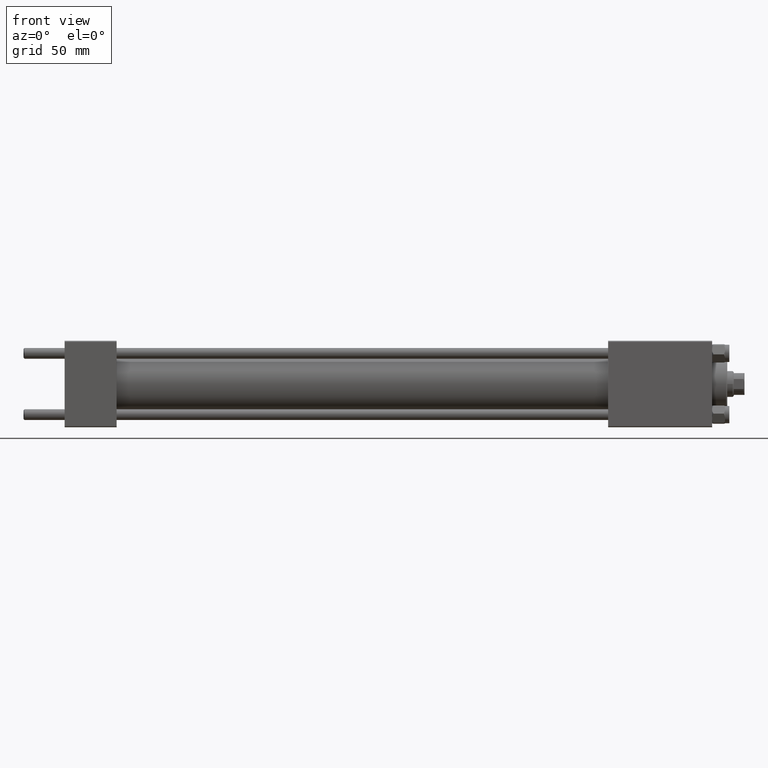
[diagram: clean part render]
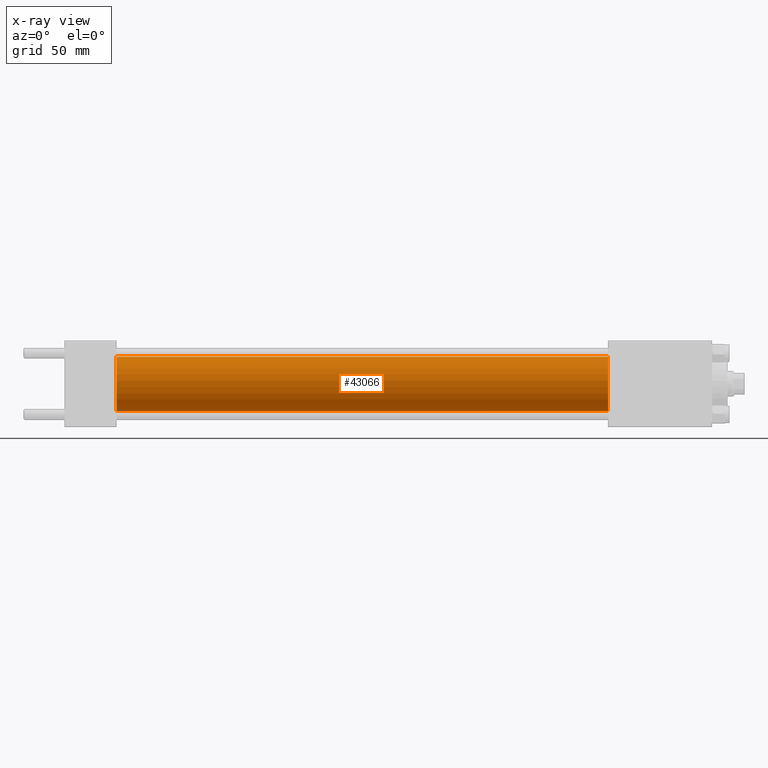
[diagram: x-ray — body ghosted, one internal face saturated and labeled with its STEP entity id]
A machine part, front view, then the same camera in x-ray: the body is ghosted and one INTERNAL B-rep face — a face not visible from any outside direction — is saturated and labeled: STEP entity #43066.
In plain terms, the highlighted cylindrical surface (edge-blend (fillet) strip) has radius 12.5 mm, axis along (-1, -0, -0).
Its self-contained STEP definition (entity closure, byte-faithful):
#246 = ORIENTED_EDGE ( 'NONE', *, *, #7033, .T. ) ;
#934 = CARTESIAN_POINT ( 'NONE',  ( 24.00000000000000000, 1.530808498934190732E-15, -12.49999999999999645 ) ) ;
#1186 = ORIENTED_EDGE ( 'NONE', *, *, #32808, .F. ) ;
#2860 = VECTOR ( 'NONE', #9244, 1000.000000000000000 ) ;
#4675 = AXIS2_PLACEMENT_3D ( 'NONE', #39520, #31191, #31433 ) ;
#5018 = ORIENTED_EDGE ( 'NONE', *, *, #10359, .F. ) ;
#5993 = DIRECTION ( 'NONE',  ( 1.000000000000000000, 0.000000000000000000, 0.000000000000000000 ) ) ;
#7033 = EDGE_CURVE ( 'NONE', #48752, #48504, #8092, .T. ) ;
#8092 = CIRCLE ( 'NONE', #25065, 12.49999999999999645 ) ;
#8988 = CIRCLE ( 'NONE', #26806, 12.49999999999999645 ) ;
#9244 = DIRECTION ( 'NONE',  ( -1.000000000000000000, -0.000000000000000000, -0.000000000000000000 ) ) ;
#9985 = VERTEX_POINT ( 'NONE', #43732 ) ;
#10359 = EDGE_CURVE ( 'NONE', #9985, #19426, #8988, .T. ) ;
#14328 = DIRECTION ( 'NONE',  ( 0.000000000000000000, 0.000000000000000000, -1.000000000000000000 ) ) ;
#16250 = DIRECTION ( 'NONE',  ( -1.000000000000000000, -0.000000000000000000, -0.000000000000000000 ) ) ;
#16751 = CARTESIAN_POINT ( 'NONE',  ( 251.0000000000000000, 1.530808498934190732E-15, -12.49999999999999645 ) ) ;
#19426 = VERTEX_POINT ( 'NONE', #934 ) ;
#24115 = CYLINDRICAL_SURFACE ( 'NONE', #4675, 12.49999999999999645 ) ;
#25065 = AXIS2_PLACEMENT_3D ( 'NONE', #34027, #5993, #14328 ) ;
#25722 = VECTOR ( 'NONE', #16250, 1000.000000000000000 ) ;
#25809 = EDGE_LOOP ( 'NONE', ( #246, #41798, #5018, #1186 ) ) ;
#26806 = AXIS2_PLACEMENT_3D ( 'NONE', #49695, #49441, #45906 ) ;
#28369 = LINE ( 'NONE', #16751, #25722 ) ;
#31191 = DIRECTION ( 'NONE',  ( -1.000000000000000000, -0.000000000000000000, -0.000000000000000000 ) ) ;
#31355 = CARTESIAN_POINT ( 'NONE',  ( 251.0000000000000000, 1.530808498934190732E-15, -12.49999999999999645 ) ) ;
#31433 = DIRECTION ( 'NONE',  ( 0.000000000000000000, 0.000000000000000000, 1.000000000000000000 ) ) ;
#31627 = CARTESIAN_POINT ( 'NONE',  ( 251.0000000000000000, 0.000000000000000000, 12.49999999999999645 ) ) ;
#32808 = EDGE_CURVE ( 'NONE', #48752, #9985, #40076, .T. ) ;
#34027 = CARTESIAN_POINT ( 'NONE',  ( 251.0000000000000000, 0.000000000000000000, 0.000000000000000000 ) ) ;
#36282 = CARTESIAN_POINT ( 'NONE',  ( 251.0000000000000000, 0.000000000000000000, 12.49999999999999645 ) ) ;
#39520 = CARTESIAN_POINT ( 'NONE',  ( 251.0000000000000000, 0.000000000000000000, 0.000000000000000000 ) ) ;
#39766 = FACE_OUTER_BOUND ( 'NONE', #25809, .T. ) ;
#40076 = LINE ( 'NONE', #36282, #2860 ) ;
#41798 = ORIENTED_EDGE ( 'NONE', *, *, #44687, .T. ) ;
#43066 = ADVANCED_FACE ( 'NONE', ( #39766 ), #24115, .F. ) ;
#43732 = CARTESIAN_POINT ( 'NONE',  ( 24.00000000000000000, 0.000000000000000000, 12.49999999999999645 ) ) ;
#44687 = EDGE_CURVE ( 'NONE', #48504, #19426, #28369, .T. ) ;
#45906 = DIRECTION ( 'NONE',  ( 0.000000000000000000, 0.000000000000000000, -1.000000000000000000 ) ) ;
#48504 = VERTEX_POINT ( 'NONE', #31355 ) ;
#48752 = VERTEX_POINT ( 'NONE', #31627 ) ;
#49441 = DIRECTION ( 'NONE',  ( 1.000000000000000000, 0.000000000000000000, 0.000000000000000000 ) ) ;
#49695 = CARTESIAN_POINT ( 'NONE',  ( 24.00000000000000000, 0.000000000000000000, 0.000000000000000000 ) ) ;